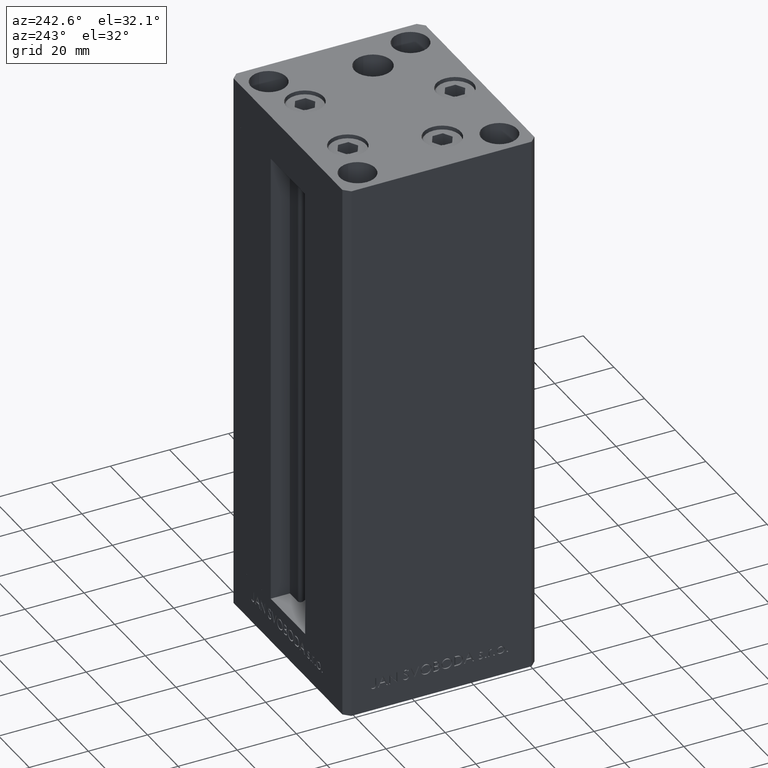
[diagram: clean part render]
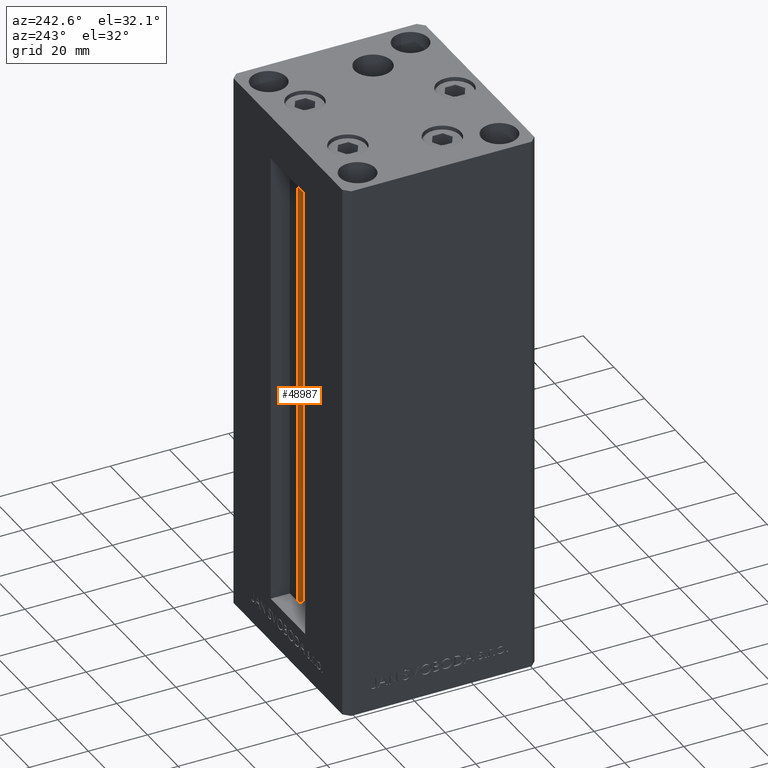
[diagram: same view with one face highlighted and labeled with its STEP entity id]
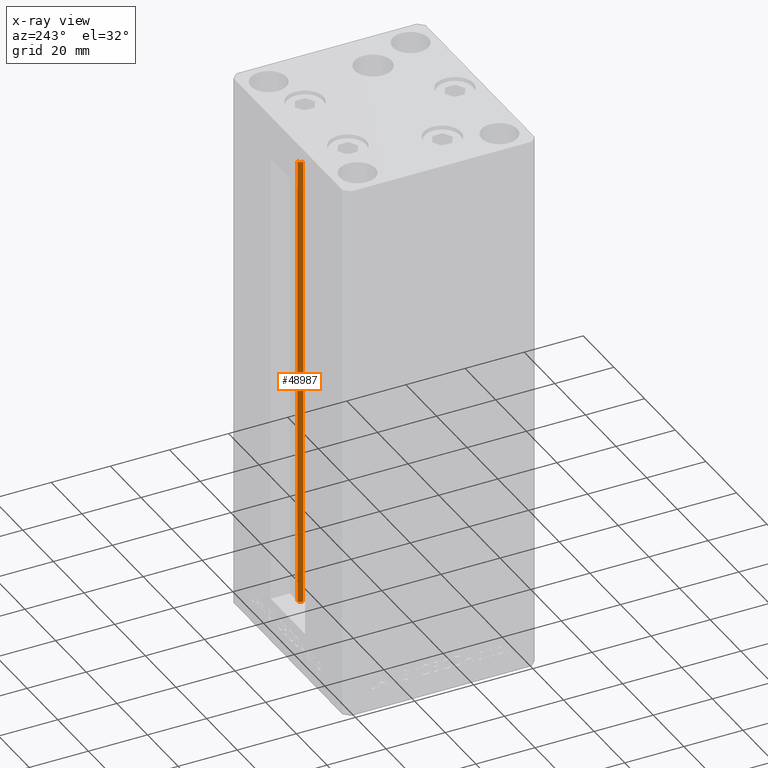
[diagram: x-ray of the same camera — body ghosted, the highlighted face saturated]
A machine part, auxiliary view. The second image highlights one B-rep face of the part: STEP entity #48987.
The next image is the same camera in x-ray: the body ghosted, the highlighted face saturated — about 0% of this face is hidden behind the body in this view.
In plain terms, the highlighted cylindrical surface (edge-blend (fillet) strip) has radius 0.9333 mm, axis along (0, 0, 1).
Its self-contained STEP definition (entity closure, byte-faithful):
#775 = CARTESIAN_POINT ( 'NONE',  ( 6.183333333334001480, 25.99999999999999289, 0.000000000000000000 ) ) ;
#1065 = LINE ( 'NONE', #27484, #6309 ) ;
#1932 = VERTEX_POINT ( 'NONE', #18385 ) ;
#4518 = DIRECTION ( 'NONE',  ( -0.000000000000000000, -0.000000000000000000, 1.000000000000000000 ) ) ;
#4662 = EDGE_CURVE ( 'NONE', #15076, #43273, #1065, .T. ) ;
#6309 = VECTOR ( 'NONE', #11527, 1000.000000000000000 ) ;
#7554 = EDGE_CURVE ( 'NONE', #15076, #36406, #37435, .T. ) ;
#8394 = CIRCLE ( 'NONE', #11580, 0.9333333333340008142 ) ;
#10415 = FACE_OUTER_BOUND ( 'NONE', #10696, .T. ) ;
#10696 = EDGE_LOOP ( 'NONE', ( #27918, #20795, #11287, #42571 ) ) ;
#11287 = ORIENTED_EDGE ( 'NONE', *, *, #4662, .T. ) ;
#11527 = DIRECTION ( 'NONE',  ( -0.000000000000000000, -0.000000000000000000, 1.000000000000000000 ) ) ;
#11580 = AXIS2_PLACEMENT_3D ( 'NONE', #33510, #48724, #29300 ) ;
#12805 = AXIS2_PLACEMENT_3D ( 'NONE', #26578, #26827, #26327 ) ;
#15076 = VERTEX_POINT ( 'NONE', #17761 ) ;
#17761 = CARTESIAN_POINT ( 'NONE',  ( 5.375042956467947164, 24.59999999999899245, 0.000000000000000000 ) ) ;
#18385 = CARTESIAN_POINT ( 'NONE',  ( 6.183333333334001480, 25.99999999999999289, 156.0000000000000000 ) ) ;
#20795 = ORIENTED_EDGE ( 'NONE', *, *, #7554, .F. ) ;
#23211 = LINE ( 'NONE', #775, #42885 ) ;
#25967 = CARTESIAN_POINT ( 'NONE',  ( 5.375042956467948052, 24.59999999999899245, 156.0000000000000000 ) ) ;
#26327 = DIRECTION ( 'NONE',  ( 1.000000000000000000, 0.000000000000000000, 0.000000000000000000 ) ) ;
#26578 = CARTESIAN_POINT ( 'NONE',  ( 6.183333333334001480, 25.06666666666599141, 0.000000000000000000 ) ) ;
#26827 = DIRECTION ( 'NONE',  ( -0.000000000000000000, -0.000000000000000000, -1.000000000000000000 ) ) ;
#27484 = CARTESIAN_POINT ( 'NONE',  ( 5.375042956467947164, 24.59999999999899245, 0.000000000000000000 ) ) ;
#27918 = ORIENTED_EDGE ( 'NONE', *, *, #45346, .F. ) ;
#29300 = DIRECTION ( 'NONE',  ( 1.000000000000000000, 0.000000000000000000, 0.000000000000000000 ) ) ;
#30092 = DIRECTION ( 'NONE',  ( -0.000000000000000000, -0.000000000000000000, 1.000000000000000000 ) ) ;
#30345 = CARTESIAN_POINT ( 'NONE',  ( 6.183333333334001480, 25.06666666666599141, 0.000000000000000000 ) ) ;
#33273 = EDGE_CURVE ( 'NONE', #43273, #1932, #8394, .T. ) ;
#33510 = CARTESIAN_POINT ( 'NONE',  ( 6.183333333334001480, 25.06666666666599141, 156.0000000000000000 ) ) ;
#34062 = CYLINDRICAL_SURFACE ( 'NONE', #46202, 0.9333333333340008142 ) ;
#36406 = VERTEX_POINT ( 'NONE', #38554 ) ;
#37435 = CIRCLE ( 'NONE', #12805, 0.9333333333340008142 ) ;
#37817 = DIRECTION ( 'NONE',  ( 1.000000000000000000, 0.000000000000000000, 0.000000000000000000 ) ) ;
#38554 = CARTESIAN_POINT ( 'NONE',  ( 6.183333333334001480, 25.99999999999999289, 0.000000000000000000 ) ) ;
#42571 = ORIENTED_EDGE ( 'NONE', *, *, #33273, .T. ) ;
#42885 = VECTOR ( 'NONE', #4518, 1000.000000000000000 ) ;
#43273 = VERTEX_POINT ( 'NONE', #25967 ) ;
#45346 = EDGE_CURVE ( 'NONE', #36406, #1932, #23211, .T. ) ;
#46202 = AXIS2_PLACEMENT_3D ( 'NONE', #30345, #30092, #37817 ) ;
#48724 = DIRECTION ( 'NONE',  ( 0.000000000000000000, 0.000000000000000000, -1.000000000000000000 ) ) ;
#48987 = ADVANCED_FACE ( 'NONE', ( #10415 ), #34062, .T. ) ;